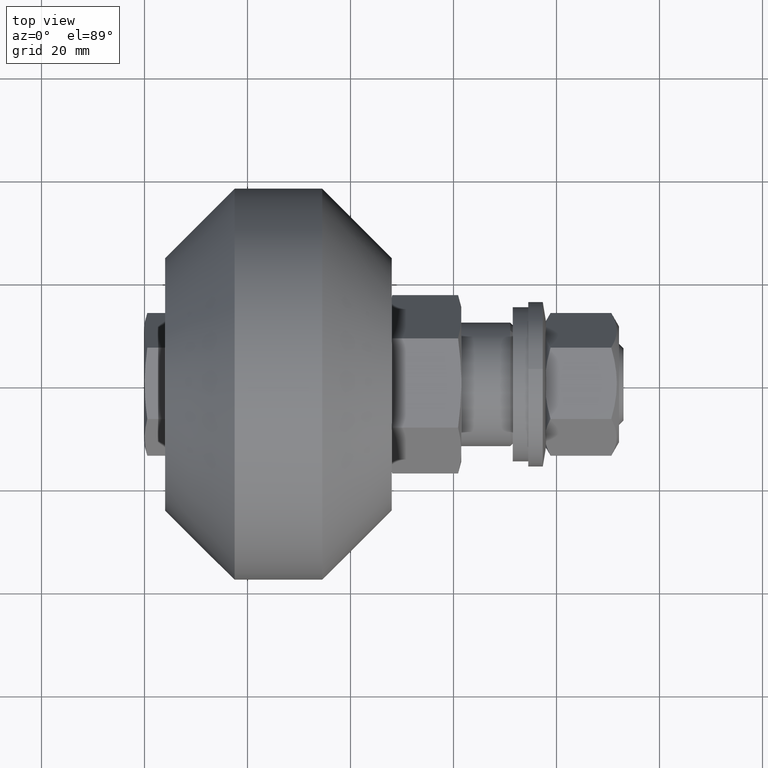
[diagram: clean part render]
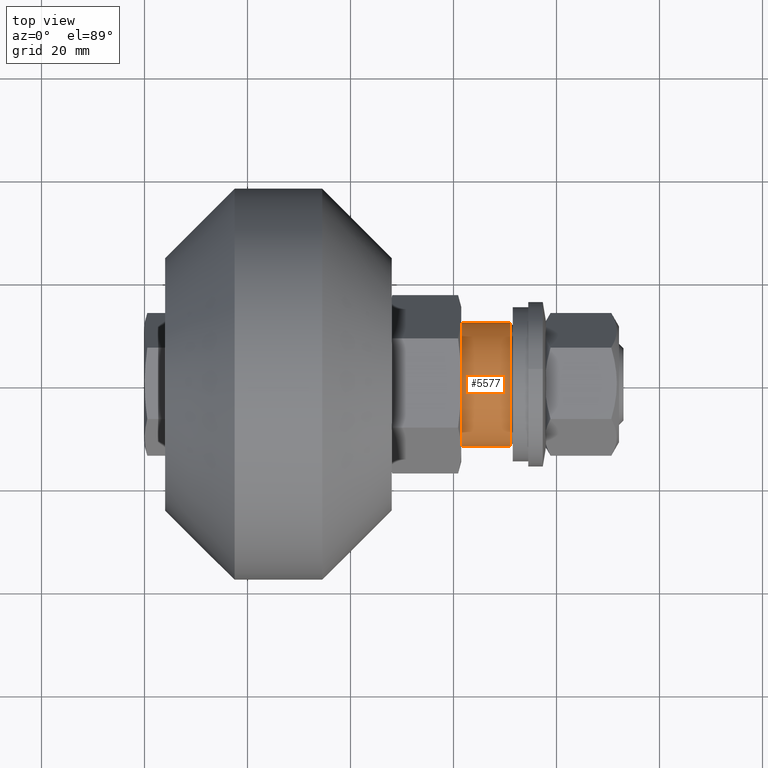
[diagram: same view with one face highlighted and labeled with its STEP entity id]
A machine part, top view. The second image highlights one B-rep face of the part: STEP entity #5577.
In plain terms, the highlighted cylindrical surface (bore or boss wall) has radius 12 mm, axis along (1, 0, 0).
Its self-contained STEP definition (entity closure, byte-faithful):
#591=CYLINDRICAL_SURFACE('',#6325,12.);
#840=FACE_OUTER_BOUND('',#1153,.T.);
#1153=EDGE_LOOP('',(#4941,#4942,#4943,#4944,#4945));
#1522=LINE('',#9690,#1840);
#1840=VECTOR('',#7742,12.);
#2105=CIRCLE('',#6321,12.);
#2106=CIRCLE('',#6322,12.);
#2108=CIRCLE('',#6326,12.);
#2623=VERTEX_POINT('',#9680);
#2624=VERTEX_POINT('',#9682);
#2626=VERTEX_POINT('',#9689);
#3422=EDGE_CURVE('',#2623,#2624,#2105,.T.);
#3423=EDGE_CURVE('',#2624,#2623,#2106,.T.);
#3425=EDGE_CURVE('',#2624,#2626,#1522,.T.);
#3426=EDGE_CURVE('',#2626,#2626,#2108,.T.);
#4941=ORIENTED_EDGE('',*,*,#3422,.F.);
#4942=ORIENTED_EDGE('',*,*,#3423,.F.);
#4943=ORIENTED_EDGE('',*,*,#3425,.T.);
#4944=ORIENTED_EDGE('',*,*,#3426,.T.);
#4945=ORIENTED_EDGE('',*,*,#3425,.F.);
#5577=ADVANCED_FACE('',(#840),#591,.T.);
#6321=AXIS2_PLACEMENT_3D('',#9683,#7732,#7733);
#6322=AXIS2_PLACEMENT_3D('',#9684,#7734,#7735);
#6325=AXIS2_PLACEMENT_3D('',#9688,#7740,#7741);
#6326=AXIS2_PLACEMENT_3D('',#9691,#7743,#7744);
#7732=DIRECTION('center_axis',(1.,0.,0.));
#7733=DIRECTION('ref_axis',(0.,-1.,0.));
#7734=DIRECTION('center_axis',(1.,0.,0.));
#7735=DIRECTION('ref_axis',(0.,-1.,0.));
#7740=DIRECTION('center_axis',(1.,0.,0.));
#7741=DIRECTION('ref_axis',(0.,1.,0.));
#7742=DIRECTION('',(-1.,0.,0.));
#7743=DIRECTION('center_axis',(1.,0.,0.));
#7744=DIRECTION('ref_axis',(0.,1.,0.));
#9680=CARTESIAN_POINT('',(25.,12.,1.46957615897682E-15));
#9682=CARTESIAN_POINT('',(25.,-12.,-1.46957615897682E-15));
#9683=CARTESIAN_POINT('Origin',(25.,0.,0.));
#9684=CARTESIAN_POINT('Origin',(25.,0.,0.));
#9688=CARTESIAN_POINT('Origin',(20.5,0.,0.));
#9689=CARTESIAN_POINT('',(15.5,-12.,-1.46957615897682E-15));
#9690=CARTESIAN_POINT('',(20.5,-12.,-1.46957615897682E-15));
#9691=CARTESIAN_POINT('Origin',(15.5,0.,0.));